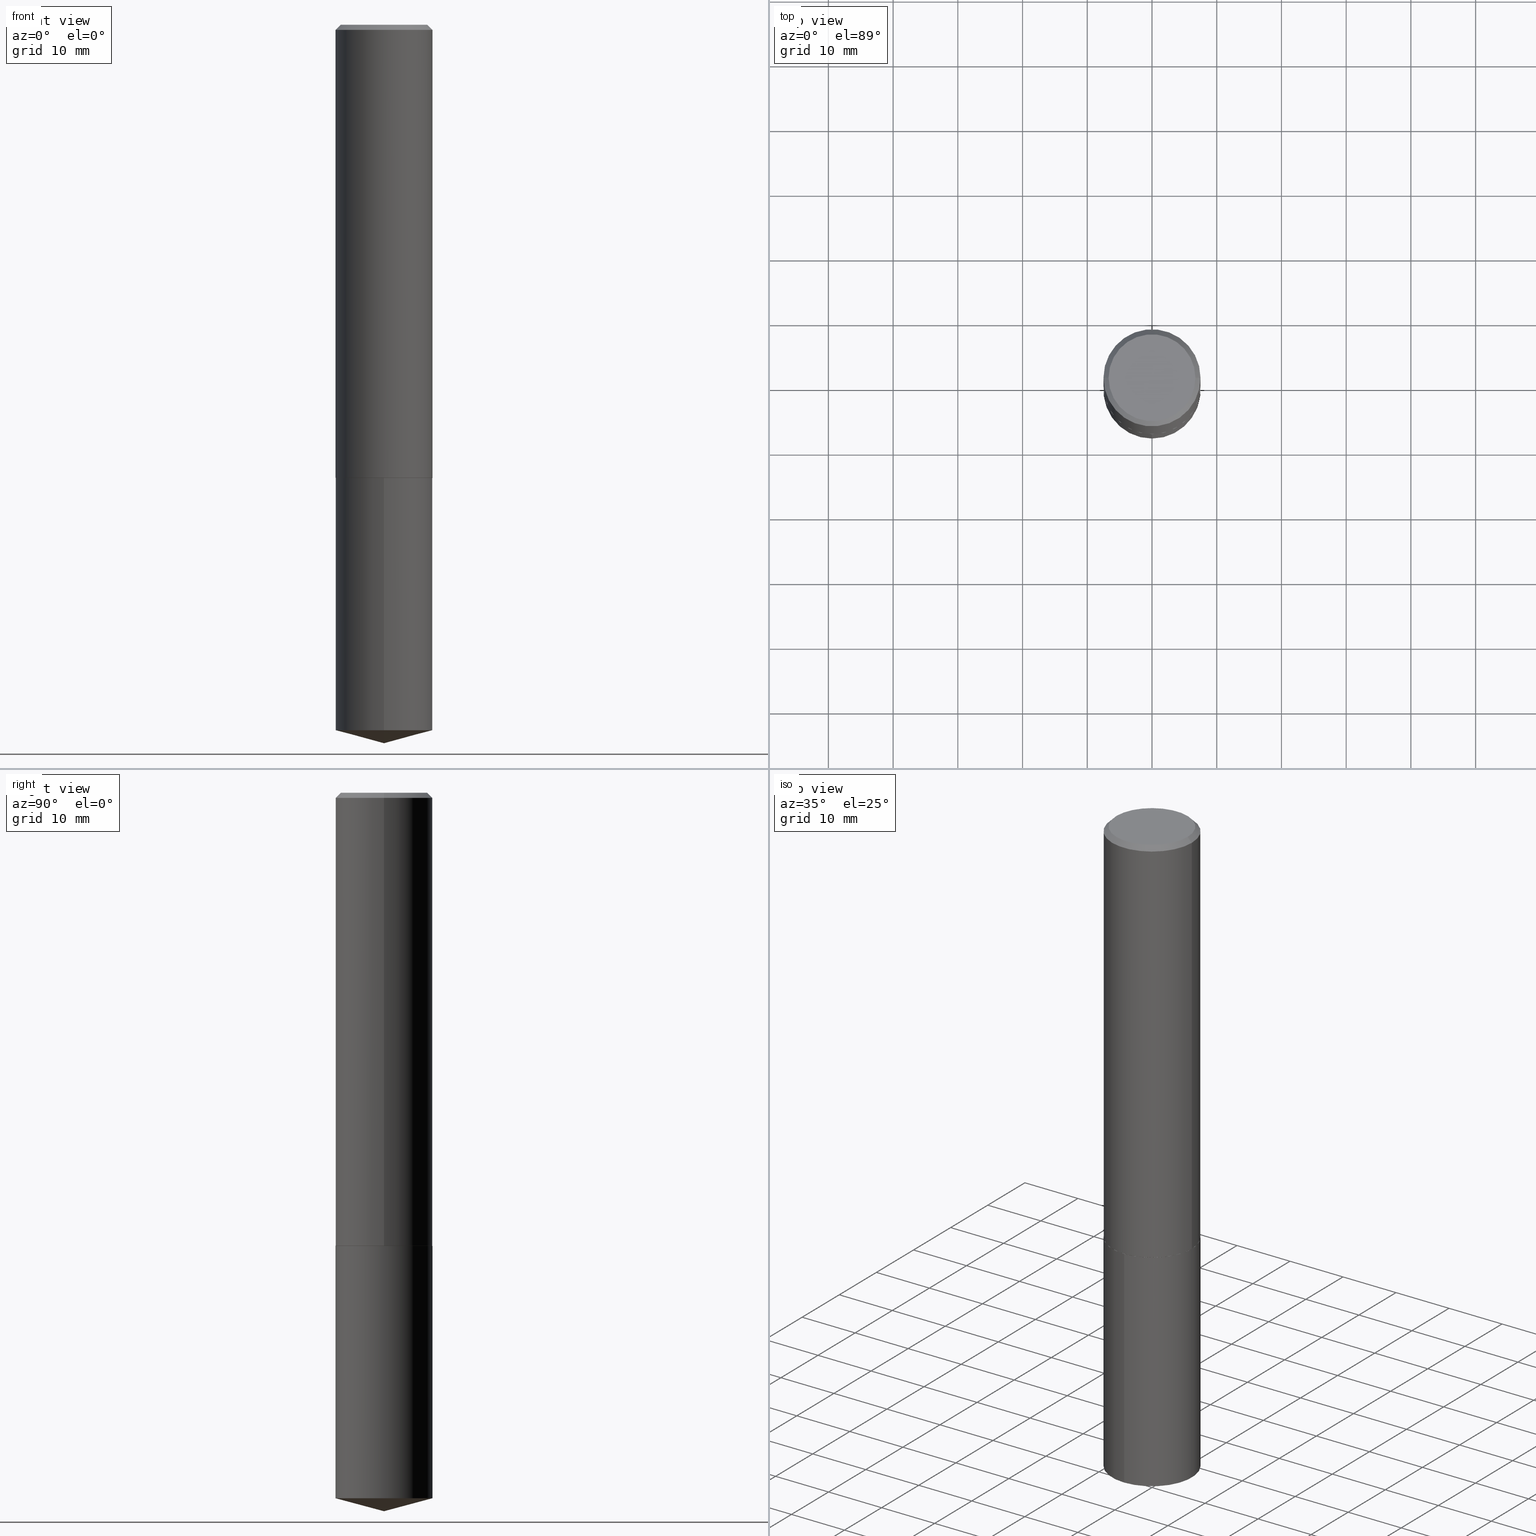
[diagram: canonical four-view strip — front | top / right | iso, engineering-drawing reading convention]
A machine part, canonical four-view strip (front | top / right | iso — engineering-drawing reading convention). The complete STEP part file that produces these views, byte-faithful:
ISO-10303-21;
HEADER;
FILE_DESCRIPTION (( 'STEP AP203' ),
    '1' );
FILE_NAME ('69053.STEP',
    '2024-04-23T14:42:55',
    ( '' ),
    ( '' ),
    'SwSTEP 2.0',
    'SolidWorks 2023',
    '' );
FILE_SCHEMA (( 'CONFIG_CONTROL_DESIGN' ));
ENDSEC;

DATA;
#1 = CARTESIAN_POINT ( 'NONE',  ( 0.000000000000000000, 0.000000000000000000, 0.000000000000000000 ) ) ;
#2 = ORIENTED_EDGE ( 'NONE', *, *, #195, .F. ) ;
#3 = APPROVAL ( #225, 'UNSPECIFIED' ) ;
#4 = ORIENTED_EDGE ( 'NONE', *, *, #309, .F. ) ;
#5 = DIRECTION ( 'NONE',  ( 1.000000000000000000, 0.000000000000000000, 0.000000000000000000 ) ) ;
#6 = EDGE_CURVE ( 'NONE', #332, #176, #150, .T. ) ;
#7 = EDGE_LOOP ( 'NONE', ( #247, #364, #180, #209 ) ) ;
#8 = ORIENTED_EDGE ( 'NONE', *, *, #278, .F. ) ;
#9 = DIRECTION ( 'NONE',  ( -2.445468806185136597E-29, 3.491481338843145583E-15, 1.000000000000000000 ) ) ;
#10 = CONICAL_SURFACE ( 'NONE', #164, 0.2953000000000000069, 0.7853981633974447263 ) ;
#11 = CC_DESIGN_PERSON_AND_ORGANIZATION_ASSIGNMENT ( #12, #220, ( #163 ) ) ;
#12 = PERSON_AND_ORGANIZATION ( #255, #156 ) ;
#13 = ORIENTED_EDGE ( 'NONE', *, *, #6, .T. ) ;
#14 = CARTESIAN_POINT ( 'NONE',  ( 1.068708000311400123E-28, -1.525793468575168796E-14, -4.370099999999999874 ) ) ;
#15 = ORIENTED_EDGE ( 'NONE', *, *, #30, .T. ) ;
#16 = ADVANCED_FACE ( 'NONE', ( #124 ), #330, .T. ) ;
#17 = DIRECTION ( 'NONE',  ( -2.445353893289901257E-29, 3.491645900649558519E-15, 1.000000000000000000 ) ) ;
#18 = DIRECTION ( 'NONE',  ( -2.445468806185136597E-29, 3.491481338843145583E-15, 1.000000000000000000 ) ) ;
#19 = AXIS2_PLACEMENT_3D ( 'NONE', #280, #308, #190 ) ;
#20 = DIRECTION ( 'NONE',  ( -2.445468806185136597E-29, 3.491481338843145583E-15, 1.000000000000000000 ) ) ;
#21 = CARTESIAN_POINT ( 'NONE',  ( -2.949913012720698115E-47, 4.211693974208535336E-33, 1.206277097160147711E-18 ) ) ;
#22 = COORDINATED_UNIVERSAL_TIME_OFFSET ( 5, 0, .BEHIND. ) ;
#23 = EDGE_CURVE ( 'NONE', #147, #82, #388, .T. ) ;
#24 = DIRECTION ( 'NONE',  ( -2.445468806185136877E-29, 3.491481338843145188E-15, 1.000000000000000000 ) ) ;
#25 = CC_DESIGN_PERSON_AND_ORGANIZATION_ASSIGNMENT ( #169, #102, ( #373 ) ) ;
#26 = APPLICATION_PROTOCOL_DEFINITION ( 'international standard', 'config_control_design', 1994, #302 ) ;
#27 = ORIENTED_EDGE ( 'NONE', *, *, #309, .T. ) ;
#28 = CARTESIAN_POINT ( 'NONE',  ( 0.2640500000000000069, -1.973264173446177597E-15, 1.206277097173494598E-18 ) ) ;
#29 = EDGE_LOOP ( 'NONE', ( #344, #276 ) ) ;
#30 = EDGE_CURVE ( 'NONE', #370, #80, #129, .T. ) ;
#31 = AXIS2_PLACEMENT_3D ( 'NONE', #61, #312, #39 ) ;
#32 = ORIENTED_EDGE ( 'NONE', *, *, #258, .F. ) ;
#33 = VECTOR ( 'NONE', #253, 39.37007874015748143 ) ;
#34 = CALENDAR_DATE ( 2024, 23, 4 ) ;
#35 = ORIENTED_EDGE ( 'NONE', *, *, #207, .F. ) ;
#36 = CARTESIAN_POINT ( 'NONE',  ( -2.062068878720649644E-15, -0.2953000000000150504, -4.290974603475088855 ) ) ;
#37 = DATE_TIME_ROLE ( 'creation_date' ) ;
#38 = CARTESIAN_POINT ( 'NONE',  ( 1.068644104906619709E-28, -1.525884175042863679E-14, -4.370099999999999874 ) ) ;
#39 = DIRECTION ( 'NONE',  ( 1.000000000000000000, -6.982962677686268288E-15, 0.000000000000000000 ) ) ;
#40 = COORDINATED_UNIVERSAL_TIME_OFFSET ( 5, 0, .BEHIND. ) ;
#41 = CARTESIAN_POINT ( 'NONE',  ( 6.739712029846235896E-29, -9.622522569851707902E-15, -2.755999999999999783 ) ) ;
#42 = DIRECTION ( 'NONE',  ( 6.863315791527694259E-15, 0.9659258262890694224, 0.2588190451025160765 ) ) ;
#43 = APPROVAL_PERSON_ORGANIZATION ( #106, #3, #294 ) ;
#44 = FACE_OUTER_BOUND ( 'NONE', #179, .T. ) ;
#45 = LINE ( 'NONE', #120, #33 ) ;
#46 = CARTESIAN_POINT ( 'NONE',  ( 0.2953000000000000069, -2.171177670559603663E-15, -0.03125000000000022898 ) ) ;
#47 = PLANE ( 'NONE',  #245 ) ;
#48 = AXIS2_PLACEMENT_3D ( 'NONE', #41, #17, #122 ) ;
#49 = FACE_OUTER_BOUND ( 'NONE', #29, .T. ) ;
#50 = ADVANCED_FACE ( 'NONE', ( #92 ), #10, .T. ) ;
#51 = DIRECTION ( 'NONE',  ( -2.438088387897960049E-29, 3.491481338843145188E-15, 1.000000000000000000 ) ) ;
#52 = SHAPE_DEFINITION_REPRESENTATION ( #203, #320 ) ;
#53 = VECTOR ( 'NONE', #142, 39.37007874015748143 ) ;
#54 = CC_DESIGN_APPROVAL ( #298, ( #232 ) ) ;
#55 = DIRECTION ( 'NONE',  ( -2.445468806185136597E-29, 3.491481338843145583E-15, 1.000000000000000000 ) ) ;
#56 = CONICAL_SURFACE ( 'NONE', #224, 0.2953000000000000069, 0.7853981633974447263 ) ;
#57 = PRODUCT_RELATED_PRODUCT_CATEGORY ( 'detail', '', ( #241 ) ) ;
#58 = ORIENTED_EDGE ( 'NONE', *, *, #292, .F. ) ;
#59 = VECTOR ( 'NONE', #127, 39.37007874015748143 ) ;
#60 = CARTESIAN_POINT ( 'NONE',  ( -0.2640500000000000069, 1.898405690962482095E-15, 1.206277097147062172E-18 ) ) ;
#61 = CARTESIAN_POINT ( 'NONE',  ( 6.738489295443143094E-29, -9.620776829182285610E-15, -2.755499999999999616 ) ) ;
#62 = DIRECTION ( 'NONE',  ( 1.000000000000000000, -6.982962677686268288E-15, 0.000000000000000000 ) ) ;
#63 = PERSON_AND_ORGANIZATION ( #255, #156 ) ;
#64 = CARTESIAN_POINT ( 'NONE',  ( 6.739712029846235896E-29, -9.622522569851707902E-15, -2.755999999999999783 ) ) ;
#65 = DIRECTION ( 'NONE',  ( 0.7071067811865450192, -7.319954787623246579E-15, -0.7071067811865500152 ) ) ;
#66 = CLOSED_SHELL ( 'NONE', ( #336, #286, #243, #367, #16, #186, #50, #112 ) ) ;
#67 = CARTESIAN_POINT ( 'NONE',  ( 6.738489295443143094E-29, -9.620776829182285610E-15, -2.755499999999999616 ) ) ;
#68 = DIRECTION ( 'NONE',  ( 1.000000000000000000, -6.982962677686268288E-15, 0.000000000000000000 ) ) ;
#69 = DATE_AND_TIME ( #234, #171 ) ;
#70 = ORIENTED_EDGE ( 'NONE', *, *, #207, .T. ) ;
#71 = COORDINATED_UNIVERSAL_TIME_OFFSET ( 5, 0, .BEHIND. ) ;
#72 = LINE ( 'NONE', #107, #119 ) ;
#73 = AXIS2_PLACEMENT_3D ( 'NONE', #359, #18, #357 ) ;
#74 = DIRECTION ( 'NONE',  ( -2.445468806185136597E-29, 3.491481338843145583E-15, 1.000000000000000000 ) ) ;
#75 = FACE_OUTER_BOUND ( 'NONE', #141, .T. ) ;
#76 = DIRECTION ( 'NONE',  ( -2.445468806185136597E-29, 3.491481338843145583E-15, 1.000000000000000000 ) ) ;
#77 = AXIS2_PLACEMENT_3D ( 'NONE', #383, #20, #197 ) ;
#78 = AXIS2_PLACEMENT_3D ( 'NONE', #221, #160, #189 ) ;
#79 = CARTESIAN_POINT ( 'NONE',  ( -1.474956506360349058E-47, 2.105846987104267668E-33, 6.031385485800738553E-19 ) ) ;
#80 = VERTEX_POINT ( 'NONE', #279 ) ;
#81 = EDGE_LOOP ( 'NONE', ( #32, #70, #283, #58 ) ) ;
#82 = VERTEX_POINT ( 'NONE', #60 ) ;
#83 = CALENDAR_DATE ( 2024, 23, 4 ) ;
#84 = EDGE_LOOP ( 'NONE', ( #314, #13, #390 ) ) ;
#85 = DIRECTION ( 'NONE',  ( -2.445468806185136597E-29, 3.491481338843145583E-15, 1.000000000000000000 ) ) ;
#86 = ADVANCED_FACE ( 'NONE', ( #184 ), #154, .T. ) ;
#87 = CONICAL_SURFACE ( 'NONE', #78, 146.9311341562558084, 1.308996938995748538 ) ;
#88 = DATE_AND_TIME ( #34, #281 ) ;
#89 = EDGE_LOOP ( 'NONE', ( #365, #111, #193, #35 ) ) ;
#90 = EDGE_CURVE ( 'NONE', #176, #80, #45, .T. ) ;
#91 = UNCERTAINTY_MEASURE_WITH_UNIT (LENGTH_MEASURE( 1.000000000000000082E-05 ), #352, 'distance_accuracy_value', 'NONE');
#92 = FACE_OUTER_BOUND ( 'NONE', #304, .T. ) ;
#93 = DIRECTION ( 'NONE',  ( 6.982962677686265922E-15, 1.000000000000000000, -3.491645900649558124E-15 ) ) ;
#94 = ADVANCED_FACE ( 'NONE', ( #218 ), #87, .T. ) ;
#95 = PERSON_AND_ORGANIZATION_ROLE ( 'design_owner' ) ;
#96 = DIRECTION ( 'NONE',  ( 1.000000000000000000, -6.982962677686266711E-15, 4.876208427331695751E-29 ) ) ;
#97 = CARTESIAN_POINT ( 'NONE',  ( -0.2953000000000003955, -7.522544130482707345E-15, -2.755499999999999616 ) ) ;
#98 = EDGE_CURVE ( 'NONE', #307, #285, #259, .T. ) ;
#99 = AXIS2_PLACEMENT_3D ( 'NONE', #79, #175, #226 ) ;
#100 = ORIENTED_EDGE ( 'NONE', *, *, #239, .T. ) ;
#101 = CIRCLE ( 'NONE', #31, 0.2953000000000003955 ) ;
#102 = PERSON_AND_ORGANIZATION_ROLE ( 'classification_officer' ) ;
#103 = PLANE ( 'NONE',  #99 ) ;
#104 = DIRECTION ( 'NONE',  ( 1.000000000000000000, -6.982962677686268288E-15, 4.876176775795936353E-29 ) ) ;
#105 = DIRECTION ( 'NONE',  ( 1.000000000000000000, -6.982962677686266711E-15, 4.876208427331695751E-29 ) ) ;
#106 = PERSON_AND_ORGANIZATION ( #255, #156 ) ;
#107 = CARTESIAN_POINT ( 'NONE',  ( -0.2953000000000000069, 1.952960086881905857E-15, -0.03125000000000022898 ) ) ;
#108 = DIRECTION ( 'NONE',  ( -0.7071067811865450192, 2.468850131082230634E-15, -0.7071067811865500152 ) ) ;
#109 = CYLINDRICAL_SURFACE ( 'NONE', #177, 0.2953000000000000069 ) ;
#110 = AXIS2_PLACEMENT_3D ( 'NONE', #21, #170, #105 ) ;
#111 = ORIENTED_EDGE ( 'NONE', *, *, #266, .T. ) ;
#112 = ADVANCED_FACE ( 'NONE', ( #261 ), #103, .F. ) ;
#113 = VERTEX_POINT ( 'NONE', #274 ) ;
#114 = LOCAL_TIME ( 10, 42, 55.00000000000000000, #117 ) ;
#115 = ORIENTED_EDGE ( 'NONE', *, *, #239, .F. ) ;
#116 = ORIENTED_EDGE ( 'NONE', *, *, #165, .T. ) ;
#117 = COORDINATED_UNIVERSAL_TIME_OFFSET ( 5, 0, .BEHIND. ) ;
#118 = EDGE_LOOP ( 'NONE', ( #377, #315, #4, #188 ) ) ;
#119 = VECTOR ( 'NONE', #108, 39.37007874015748143 ) ;
#120 = CARTESIAN_POINT ( 'NONE',  ( -2.062068878720687115E-15, -0.2953000000000096659, -2.755999999999998895 ) ) ;
#121 = CARTESIAN_POINT ( 'NONE',  ( 0.000000000000000000, 0.000000000000000000, 0.000000000000000000 ) ) ;
#122 = DIRECTION ( 'NONE',  ( -6.982962677686266711E-15, -1.000000000000000000, 3.700437512582815297E-15 ) ) ;
#123 = DIRECTION ( 'NONE',  ( -2.445353893289901257E-29, 3.491645900649558519E-15, 1.000000000000000000 ) ) ;
#124 = FACE_OUTER_BOUND ( 'NONE', #89, .T. ) ;
#125 = CARTESIAN_POINT ( 'NONE',  ( 6.738489295443143094E-29, -9.620776829182285610E-15, -2.755499999999999616 ) ) ;
#126 = DIMENSIONAL_EXPONENTS ( 1.000000000000000000, 0.000000000000000000, 0.000000000000000000, 0.000000000000000000, 0.000000000000000000, 0.000000000000000000, 0.000000000000000000 ) ;
#127 = DIRECTION ( 'NONE',  ( 0.7071067811868372299, -2.468850131085291414E-15, 0.7071067811862578045 ) ) ;
#128 = CARTESIAN_POINT ( 'NONE',  ( 7.642090019328607041E-31, -1.091087918388490883E-16, -0.03125000000000022898 ) ) ;
#129 = CIRCLE ( 'NONE', #338, 0.2953000000000000069 ) ;
#130 = DIRECTION ( 'NONE',  ( 1.000000000000000000, -6.982962677686267499E-15, 0.000000000000000000 ) ) ;
#131 = CARTESIAN_POINT ( 'NONE',  ( 0.2953000000000003955, -1.168284570790304451E-14, -2.755499999999999616 ) ) ;
#132 = LINE ( 'NONE', #368, #53 ) ;
#133 = CARTESIAN_POINT ( 'NONE',  ( 0.000000000000000000, 0.000000000000000000, 0.000000000000000000 ) ) ;
#134 = PERSON_AND_ORGANIZATION ( #255, #156 ) ;
#135 = LENGTH_MEASURE_WITH_UNIT ( LENGTH_MEASURE( 0.02539999999999999897 ), #296 );
#136 = CC_DESIGN_PERSON_AND_ORGANIZATION_ASSIGNMENT ( #208, #149, ( #232 ) ) ;
#137 = EDGE_LOOP ( 'NONE', ( #349, #15 ) ) ;
#138 = VECTOR ( 'NONE', #210, 39.37007874015748143 ) ;
#139 = AXIS2_PLACEMENT_3D ( 'NONE', #262, #354, #199 ) ;
#140 = EDGE_CURVE ( 'NONE', #333, #370, #132, .T. ) ;
#141 = EDGE_LOOP ( 'NONE', ( #334, #100, #27, #8 ) ) ;
#142 = DIRECTION ( 'NONE',  ( -2.445353893289901257E-29, 3.491645900649558124E-15, 1.000000000000000000 ) ) ;
#143 = EDGE_LOOP ( 'NONE', ( #351, #191, #2 ) ) ;
#144 = AXIS2_PLACEMENT_3D ( 'NONE', #161, #371, #284 ) ;
#145 = MECHANICAL_CONTEXT ( 'NONE', #302, 'mechanical' ) ;
#146 = VECTOR ( 'NONE', #350, 39.37007874015748143 ) ;
#147 = VERTEX_POINT ( 'NONE', #28 ) ;
#148 = EDGE_CURVE ( 'NONE', #333, #176, #214, .T. ) ;
#149 = PERSON_AND_ORGANIZATION_ROLE ( 'creator' ) ;
#150 = LINE ( 'NONE', #38, #297 ) ;
#151 = MANIFOLD_SOLID_BREP ( 'Body-Move/Copy2[2]', #66 ) ;
#152 = DATE_AND_TIME ( #213, #270 ) ;
#153 = EDGE_CURVE ( 'NONE', #332, #333, #378, .T. ) ;
#154 = CYLINDRICAL_SURFACE ( 'NONE', #48, 0.2953000000000000069 ) ;
#155 = CARTESIAN_POINT ( 'NONE',  ( 6.739712029846235896E-29, -9.622522569851707902E-15, -2.755999999999999783 ) ) ;
#156 = ORGANIZATION ( 'UNSPECIFIED', 'UNSPECIFIED', '' ) ;
#157 = CARTESIAN_POINT ( 'NONE',  ( 7.642090019328607041E-31, -1.091087918388490883E-16, -0.03125000000000022898 ) ) ;
#158 = ORIENTED_EDGE ( 'NONE', *, *, #303, .T. ) ;
#159 = PLANE ( 'NONE',  #231 ) ;
#160 = DIRECTION ( 'NONE',  ( -2.445353893289901257E-29, 3.491645900649558519E-15, 1.000000000000000000 ) ) ;
#161 = CARTESIAN_POINT ( 'NONE',  ( 6.739712029846235896E-29, -9.622522569851707902E-15, -2.755999999999999783 ) ) ;
#162 = CARTESIAN_POINT ( 'NONE',  ( 0.2948000000000003396, -1.168109996723362222E-14, -2.755999999999999339 ) ) ;
#163 = PRODUCT_DEFINITION_FORMATION_WITH_SPECIFIED_SOURCE ( 'ANY', '', #241, .NOT_KNOWN. ) ;
#164 = AXIS2_PLACEMENT_3D ( 'NONE', #157, #227, #341 ) ;
#165 = EDGE_CURVE ( 'NONE', #389, #380, #316, .T. ) ;
#166 = CARTESIAN_POINT ( 'NONE',  ( 6.739712029846235896E-29, -9.622522569851707902E-15, -2.755999999999999783 ) ) ;
#167 = CALENDAR_DATE ( 2024, 23, 4 ) ;
#168 =( NAMED_UNIT ( * ) PLANE_ANGLE_UNIT ( ) SI_UNIT ( $, .RADIAN. ) );
#169 = PERSON_AND_ORGANIZATION ( #255, #156 ) ;
#170 = DIRECTION ( 'NONE',  ( -2.445468806185136597E-29, 3.491481338843145583E-15, 1.000000000000000000 ) ) ;
#171 = LOCAL_TIME ( 10, 42, 55.00000000000000000, #71 ) ;
#172 = EDGE_CURVE ( 'NONE', #285, #380, #289, .T. ) ;
#173 = CLOSED_SHELL ( 'NONE', ( #86, #360, #94, #331, #246 ) ) ;
#174 = FACE_OUTER_BOUND ( 'NONE', #118, .T. ) ;
#175 = DIRECTION ( 'NONE',  ( 2.438088387897960049E-29, -3.491481338843145188E-15, -1.000000000000000000 ) ) ;
#176 = VERTEX_POINT ( 'NONE', #36 ) ;
#177 = AXIS2_PLACEMENT_3D ( 'NONE', #166, #361, #264 ) ;
#178 = EDGE_CURVE ( 'NONE', #80, #370, #327, .T. ) ;
#179 = EDGE_LOOP ( 'NONE', ( #158, #116, #346, #244 ) ) ;
#180 = ORIENTED_EDGE ( 'NONE', *, *, #90, .T. ) ;
#181 = AXIS2_PLACEMENT_3D ( 'NONE', #125, #85, #192 ) ;
#182 = DESIGN_CONTEXT ( 'detailed design', #240, 'design' ) ;
#183 = PERSON_AND_ORGANIZATION ( #255, #156 ) ;
#184 = FACE_OUTER_BOUND ( 'NONE', #382, .T. ) ;
#185 = LINE ( 'NONE', #319, #322 ) ;
#186 = ADVANCED_FACE ( 'NONE', ( #216 ), #288, .T. ) ;
#187 = DIRECTION ( 'NONE',  ( 0.000000000000000000, 0.000000000000000000, 1.000000000000000000 ) ) ;
#188 = ORIENTED_EDGE ( 'NONE', *, *, #374, .F. ) ;
#189 = DIRECTION ( 'NONE',  ( -6.982962677686266711E-15, -1.000000000000000000, 3.510303681827621500E-15 ) ) ;
#190 = DIRECTION ( 'NONE',  ( -6.982962677686266711E-15, -1.000000000000000000, 3.700437512582815297E-15 ) ) ;
#191 = ORIENTED_EDGE ( 'NONE', *, *, #153, .T. ) ;
#192 = DIRECTION ( 'NONE',  ( 1.000000000000000000, -6.982962677686268288E-15, 0.000000000000000000 ) ) ;
#193 = ORIENTED_EDGE ( 'NONE', *, *, #98, .T. ) ;
#194 = DIRECTION ( 'NONE',  ( 2.445468806185136597E-29, -3.491481338843145583E-15, -1.000000000000000000 ) ) ;
#195 = EDGE_CURVE ( 'NONE', #176, #333, #268, .T. ) ;
#196 = AXIS2_PLACEMENT_3D ( 'NONE', #222, #123, #347 ) ;
#197 = DIRECTION ( 'NONE',  ( 1.000000000000000000, -6.982962677686271444E-15, 0.000000000000000000 ) ) ;
#198 = CC_DESIGN_SECURITY_CLASSIFICATION ( #373, ( #163 ) ) ;
#199 = DIRECTION ( 'NONE',  ( -6.982962677686266711E-15, -1.000000000000000000, 3.510303681827621500E-15 ) ) ;
#200 = LINE ( 'NONE', #290, #236 ) ;
#201 = FACE_OUTER_BOUND ( 'NONE', #143, .T. ) ;
#202 = AXIS2_PLACEMENT_3D ( 'NONE', #337, #55, #329 ) ;
#203 = PRODUCT_DEFINITION_SHAPE ( 'NONE', 'NONE',  #232 ) ;
#204 = ORIENTED_EDGE ( 'NONE', *, *, #358, .T. ) ;
#205 = CC_DESIGN_PERSON_AND_ORGANIZATION_ASSIGNMENT ( #134, #229, ( #163 ) ) ;
#206 = ORIENTED_EDGE ( 'NONE', *, *, #292, .T. ) ;
#207 = EDGE_CURVE ( 'NONE', #380, #285, #101, .T. ) ;
#208 = PERSON_AND_ORGANIZATION ( #255, #156 ) ;
#209 = ORIENTED_EDGE ( 'NONE', *, *, #30, .F. ) ;
#210 = DIRECTION ( 'NONE',  ( -2.445468806185136877E-29, 3.491481338843145188E-15, 1.000000000000000000 ) ) ;
#211 = AXIS2_PLACEMENT_3D ( 'NONE', #318, #277, #96 ) ;
#212 =( GEOMETRIC_REPRESENTATION_CONTEXT ( 3 ) GLOBAL_UNCERTAINTY_ASSIGNED_CONTEXT ( ( #91 ) ) GLOBAL_UNIT_ASSIGNED_CONTEXT ( ( #352, #168, #385 ) ) REPRESENTATION_CONTEXT ( 'NONE', 'WORKASPACE' ) );
#213 = CALENDAR_DATE ( 2024, 23, 4 ) ;
#214 = CIRCLE ( 'NONE', #19, 0.2953000000000000069 ) ;
#215 = DIRECTION ( 'NONE',  ( -6.982962677686266711E-15, -1.000000000000000000, 3.700437512582815297E-15 ) ) ;
#216 = FACE_OUTER_BOUND ( 'NONE', #81, .T. ) ;
#217 = APPLICATION_PROTOCOL_DEFINITION ( 'international standard', 'config_control_design', 1994, #240 ) ;
#218 = FACE_OUTER_BOUND ( 'NONE', #84, .T. ) ;
#219 = LINE ( 'NONE', #260, #138 ) ;
#220 = PERSON_AND_ORGANIZATION_ROLE ( 'creator' ) ;
#221 = CARTESIAN_POINT ( 'NONE',  ( -8.558701757736859767E-28, 1.222079858232310516E-13, 34.99997874015748067 ) ) ;
#222 = CARTESIAN_POINT ( 'NONE',  ( 1.049326815255516956E-28, -1.498211035167668908E-14, -4.290974603475089744 ) ) ;
#223 = ORIENTED_EDGE ( 'NONE', *, *, #278, .T. ) ;
#224 = AXIS2_PLACEMENT_3D ( 'NONE', #128, #194, #265 ) ;
#225 = APPROVAL_STATUS ( 'not_yet_approved' ) ;
#226 = DIRECTION ( 'NONE',  ( -1.000000000000000000, 6.982962677686265922E-15, -4.876176775795935793E-29 ) ) ;
#227 = DIRECTION ( 'NONE',  ( 2.445468806185136597E-29, -3.491481338843145583E-15, -1.000000000000000000 ) ) ;
#228 = DIRECTION ( 'NONE',  ( 1.000000000000000000, -6.982962677686265922E-15, 4.876176775795935793E-29 ) ) ;
#229 = PERSON_AND_ORGANIZATION_ROLE ( 'design_supplier' ) ;
#230 = CARTESIAN_POINT ( 'NONE',  ( 2.098232698699681211E-15, 0.2952999999999904035, -2.756000000000000671 ) ) ;
#231 = AXIS2_PLACEMENT_3D ( 'NONE', #155, #376, #93 ) ;
#232 = PRODUCT_DEFINITION ( 'UNKNOWN', '', #163, #182 ) ;
#233 = CARTESIAN_POINT ( 'NONE',  ( 1.068644104906619709E-28, -1.525884175042863363E-14, -4.370099999999999874 ) ) ;
#234 = CALENDAR_DATE ( 2024, 23, 4 ) ;
#235 = AXIS2_PLACEMENT_3D ( 'NONE', #325, #76, #130 ) ;
#236 = VECTOR ( 'NONE', #24, 39.37007874015748143 ) ;
#237 = VECTOR ( 'NONE', #42, 39.37007874015748143 ) ;
#238 = EDGE_LOOP ( 'NONE', ( #204, #366 ) ) ;
#239 = EDGE_CURVE ( 'NONE', #147, #249, #185, .T. ) ;
#240 = APPLICATION_CONTEXT ( 'configuration controlled 3d designs of mechanical parts and assemblies' ) ;
#241 = PRODUCT ( '69053', '69053', '', ( #145 ) ) ;
#242 = ORIENTED_EDGE ( 'NONE', *, *, #195, .T. ) ;
#243 = ADVANCED_FACE ( 'NONE', ( #44 ), #372, .T. ) ;
#244 = ORIENTED_EDGE ( 'NONE', *, *, #98, .F. ) ;
#245 = AXIS2_PLACEMENT_3D ( 'NONE', #267, #51, #228 ) ;
#246 = ADVANCED_FACE ( 'NONE', ( #257 ), #159, .F. ) ;
#247 = ORIENTED_EDGE ( 'NONE', *, *, #140, .F. ) ;
#248 = APPROVAL_STATUS ( 'not_yet_approved' ) ;
#249 = VERTEX_POINT ( 'NONE', #46 ) ;
#250 = CARTESIAN_POINT ( 'NONE',  ( 6.738489295443143094E-29, -9.620776829182285610E-15, -2.755499999999999616 ) ) ;
#251 = CIRCLE ( 'NONE', #73, 0.2953000000000000069 ) ;
#252 = LOCAL_TIME ( 10, 42, 55.00000000000000000, #22 ) ;
#253 = DIRECTION ( 'NONE',  ( -2.445353893289901257E-29, 3.491645900649558124E-15, 1.000000000000000000 ) ) ;
#254 = DIRECTION ( 'NONE',  ( -2.445468806185136597E-29, 3.491481338843145583E-15, 1.000000000000000000 ) ) ;
#255 = PERSON ( 'UNSPECIFIED', 'UNSPECIFIED', 'UNSPECIFIED', ('UNSPECIFIED'), ('UNSPECIFIED'), ('UNSPECIFIED') ) ;
#256 = DIRECTION ( 'NONE',  ( -2.445353893289901257E-29, 3.491645900649558519E-15, 1.000000000000000000 ) ) ;
#257 = FACE_OUTER_BOUND ( 'NONE', #137, .T. ) ;
#258 = EDGE_CURVE ( 'NONE', #380, #113, #219, .T. ) ;
#259 = LINE ( 'NONE', #287, #59 ) ;
#260 = CARTESIAN_POINT ( 'NONE',  ( -0.2953000000000001735, 2.098232698699577081E-15, -1.452561532152274683E-29 ) ) ;
#261 = FACE_OUTER_BOUND ( 'NONE', #238, .T. ) ;
#262 = CARTESIAN_POINT ( 'NONE',  ( -8.558701757736859767E-28, 1.222079858232310516E-13, 34.99997874015748067 ) ) ;
#263 = DATE_AND_TIME ( #167, #252 ) ;
#264 = DIRECTION ( 'NONE',  ( -6.982962677686266711E-15, -1.000000000000000000, 3.700437512582815297E-15 ) ) ;
#265 = DIRECTION ( 'NONE',  ( -1.000000000000000000, 6.982962677686267499E-15, 0.000000000000000000 ) ) ;
#266 = EDGE_CURVE ( 'NONE', #389, #307, #355, .T. ) ;
#267 = CARTESIAN_POINT ( 'NONE',  ( 1.030650564944438453E-28, -4.514671097301707835E-15, -2.755999999999999783 ) ) ;
#268 = CIRCLE ( 'NONE', #196, 0.2953000000000000069 ) ;
#269 = ORIENTED_EDGE ( 'NONE', *, *, #358, .F. ) ;
#270 = LOCAL_TIME ( 10, 42, 55.00000000000000000, #40 ) ;
#271 = ORIENTED_EDGE ( 'NONE', *, *, #178, .F. ) ;
#272 = AXIS2_PLACEMENT_3D ( 'NONE', #67, #375, #62 ) ;
#273 = CIRCLE ( 'NONE', #110, 0.2640500000000000069 ) ;
#274 = CARTESIAN_POINT ( 'NONE',  ( -0.2953000000000000069, -2.766710111810989090E-15, -0.03125000000000022898 ) ) ;
#275 = APPROVAL_STATUS ( 'not_yet_approved' ) ;
#276 = ORIENTED_EDGE ( 'NONE', *, *, #266, .F. ) ;
#277 = DIRECTION ( 'NONE',  ( -2.445468806185136597E-29, 3.491481338843145583E-15, 1.000000000000000000 ) ) ;
#278 = EDGE_CURVE ( 'NONE', #82, #113, #72, .T. ) ;
#279 = CARTESIAN_POINT ( 'NONE',  ( -2.062068878720687115E-15, -0.2953000000000096659, -2.755999999999998895 ) ) ;
#280 = CARTESIAN_POINT ( 'NONE',  ( 1.049326815255516956E-28, -1.498211035167668908E-14, -4.290974603475089744 ) ) ;
#281 = LOCAL_TIME ( 10, 42, 55.00000000000000000, #343 ) ;
#282 = APPROVAL_ROLE ( '' ) ;
#283 = ORIENTED_EDGE ( 'NONE', *, *, #374, .T. ) ;
#284 = DIRECTION ( 'NONE',  ( -6.982962677686266711E-15, -1.000000000000000000, 3.700437512582815297E-15 ) ) ;
#285 = VERTEX_POINT ( 'NONE', #131 ) ;
#286 = ADVANCED_FACE ( 'NONE', ( #174 ), #321, .T. ) ;
#287 = CARTESIAN_POINT ( 'NONE',  ( 0.2953000000000003955, -1.168284570790304451E-14, -2.755499999999999616 ) ) ;
#288 = CYLINDRICAL_SURFACE ( 'NONE', #381, 0.2953000000000001735 ) ;
#289 = CIRCLE ( 'NONE', #363, 0.2953000000000003955 ) ;
#290 = CARTESIAN_POINT ( 'NONE',  ( 0.2953000000000001735, -2.062068878720756141E-15, 1.439935001892540778E-29 ) ) ;
#291 = MANIFOLD_SOLID_BREP ( 'Body-Move/Copy2[1]', #173 ) ;
#292 = EDGE_CURVE ( 'NONE', #113, #249, #251, .T. ) ;
#293 = CARTESIAN_POINT ( 'NONE',  ( 2.098232698699680817E-15, 0.2952999999999850744, -4.290974603475090632 ) ) ;
#294 = APPROVAL_ROLE ( '' ) ;
#295 = CONICAL_SURFACE ( 'NONE', #139, 146.9311341562558084, 1.308996938995748538 ) ;
#296 =( LENGTH_UNIT ( ) NAMED_UNIT ( * ) SI_UNIT ( $, .METRE. ) );
#297 = VECTOR ( 'NONE', #311, 39.37007874015748854 ) ;
#298 = APPROVAL ( #275, 'UNSPECIFIED' ) ;
#299 = CIRCLE ( 'NONE', #77, 0.2948000000000003396 ) ;
#300 = ORIENTED_EDGE ( 'NONE', *, *, #90, .F. ) ;
#301 = APPROVAL_PERSON_ORGANIZATION ( #310, #298, #282 ) ;
#302 = APPLICATION_CONTEXT ( 'configuration controlled 3d designs of mechanical parts and assemblies' ) ;
#303 = EDGE_CURVE ( 'NONE', #307, #389, #299, .T. ) ;
#304 = EDGE_LOOP ( 'NONE', ( #115, #269, #223, #206 ) ) ;
#305 = AXIS2_PLACEMENT_3D ( 'NONE', #133, #74, #104 ) ;
#306 = APPROVAL_DATE_TIME ( #379, #298 ) ;
#307 = VERTEX_POINT ( 'NONE', #162 ) ;
#308 = DIRECTION ( 'NONE',  ( -2.445353893289901257E-29, 3.491645900649558519E-15, 1.000000000000000000 ) ) ;
#309 = EDGE_CURVE ( 'NONE', #249, #113, #362, .T. ) ;
#310 = PERSON_AND_ORGANIZATION ( #255, #156 ) ;
#311 = DIRECTION ( 'NONE',  ( -6.745023994389839133E-15, -0.9659258262890676461, 0.2588190451025227934 ) ) ;
#312 = DIRECTION ( 'NONE',  ( -2.445468806185136597E-29, 3.491481338843145583E-15, 1.000000000000000000 ) ) ;
#313 = APPROVAL_DATE_TIME ( #152, #324 ) ;
#314 = ORIENTED_EDGE ( 'NONE', *, *, #153, .F. ) ;
#315 = ORIENTED_EDGE ( 'NONE', *, *, #258, .T. ) ;
#316 = LINE ( 'NONE', #97, #146 ) ;
#317 = CC_DESIGN_DATE_AND_TIME_ASSIGNMENT ( #69, #353, ( #373 ) ) ;
#318 = CARTESIAN_POINT ( 'NONE',  ( -2.949913012720698115E-47, 4.211693974208535336E-33, 1.206277097160147711E-18 ) ) ;
#319 = CARTESIAN_POINT ( 'NONE',  ( 0.2953000000000000069, -2.135013850580782723E-15, -0.03125000000000022898 ) ) ;
#320 = ADVANCED_BREP_SHAPE_REPRESENTATION ( '69053', ( #291, #151, #339 ), #212 ) ;
#321 = CYLINDRICAL_SURFACE ( 'NONE', #305, 0.2953000000000001735 ) ;
#322 = VECTOR ( 'NONE', #65, 39.37007874015748143 ) ;
#323 = APPROVAL_PERSON_ORGANIZATION ( #63, #324, #369 ) ;
#324 = APPROVAL ( #248, 'UNSPECIFIED' ) ;
#325 = CARTESIAN_POINT ( 'NONE',  ( 7.642090019328607041E-31, -1.091087918388490883E-16, -0.03125000000000022898 ) ) ;
#326 = CARTESIAN_POINT ( 'NONE',  ( -0.2948000000000003396, -7.525193357656817757E-15, -2.755999999999999339 ) ) ;
#327 = CIRCLE ( 'NONE', #144, 0.2953000000000000069 ) ;
#328 = CC_DESIGN_APPROVAL ( #3, ( #373 ) ) ;
#329 = DIRECTION ( 'NONE',  ( 1.000000000000000000, -6.982962677686271444E-15, 0.000000000000000000 ) ) ;
#330 = CONICAL_SURFACE ( 'NONE', #272, 0.2953000000000003955, 0.7853981633978580623 ) ;
#331 = ADVANCED_FACE ( 'NONE', ( #387 ), #109, .T. ) ;
#332 = VERTEX_POINT ( 'NONE', #233 ) ;
#333 = VERTEX_POINT ( 'NONE', #293 ) ;
#334 = ORIENTED_EDGE ( 'NONE', *, *, #23, .F. ) ;
#335 = ORIENTED_EDGE ( 'NONE', *, *, #140, .T. ) ;
#336 = ADVANCED_FACE ( 'NONE', ( #75 ), #56, .T. ) ;
#337 = CARTESIAN_POINT ( 'NONE',  ( 6.739712029846234775E-29, -9.622522569851706324E-15, -2.755999999999999339 ) ) ;
#338 = AXIS2_PLACEMENT_3D ( 'NONE', #64, #256, #215 ) ;
#339 = AXIS2_PLACEMENT_3D ( 'NONE', #1, #187, #5 ) ;
#340 = CC_DESIGN_PERSON_AND_ORGANIZATION_ASSIGNMENT ( #183, #95, ( #241 ) ) ;
#341 = DIRECTION ( 'NONE',  ( -1.000000000000000000, 6.982962677686267499E-15, 0.000000000000000000 ) ) ;
#342 = DIRECTION ( 'NONE',  ( 1.000000000000000000, -6.982962677686268288E-15, 4.876176775795936353E-29 ) ) ;
#343 = COORDINATED_UNIVERSAL_TIME_OFFSET ( 5, 0, .BEHIND. ) ;
#344 = ORIENTED_EDGE ( 'NONE', *, *, #303, .F. ) ;
#345 = CC_DESIGN_DATE_AND_TIME_ASSIGNMENT ( #88, #37, ( #232 ) ) ;
#346 = ORIENTED_EDGE ( 'NONE', *, *, #172, .F. ) ;
#347 = DIRECTION ( 'NONE',  ( -6.982962677686266711E-15, -1.000000000000000000, 3.700437512582815297E-15 ) ) ;
#348 = CC_DESIGN_APPROVAL ( #324, ( #163 ) ) ;
#349 = ORIENTED_EDGE ( 'NONE', *, *, #178, .T. ) ;
#350 = DIRECTION ( 'NONE',  ( -0.7071067811868372299, 7.493145998871401767E-15, 0.7071067811862578045 ) ) ;
#351 = ORIENTED_EDGE ( 'NONE', *, *, #6, .F. ) ;
#352 =( CONVERSION_BASED_UNIT ( 'INCH', #135 ) LENGTH_UNIT ( ) NAMED_UNIT ( #126 ) );
#353 = DATE_TIME_ROLE ( 'classification_date' ) ;
#354 = DIRECTION ( 'NONE',  ( -2.445353893289901257E-29, 3.491645900649558519E-15, 1.000000000000000000 ) ) ;
#355 = CIRCLE ( 'NONE', #202, 0.2948000000000003396 ) ;
#356 = APPROVAL_DATE_TIME ( #263, #3 ) ;
#357 = DIRECTION ( 'NONE',  ( 1.000000000000000000, -6.982962677686267499E-15, 0.000000000000000000 ) ) ;
#358 = EDGE_CURVE ( 'NONE', #82, #147, #273, .T. ) ;
#359 = CARTESIAN_POINT ( 'NONE',  ( 7.642090019328607041E-31, -1.091087918388490883E-16, -0.03125000000000022898 ) ) ;
#360 = ADVANCED_FACE ( 'NONE', ( #201 ), #295, .T. ) ;
#361 = DIRECTION ( 'NONE',  ( -2.445353893289901257E-29, 3.491645900649558519E-15, 1.000000000000000000 ) ) ;
#362 = CIRCLE ( 'NONE', #235, 0.2953000000000000069 ) ;
#363 = AXIS2_PLACEMENT_3D ( 'NONE', #250, #9, #68 ) ;
#364 = ORIENTED_EDGE ( 'NONE', *, *, #148, .T. ) ;
#365 = ORIENTED_EDGE ( 'NONE', *, *, #165, .F. ) ;
#366 = ORIENTED_EDGE ( 'NONE', *, *, #23, .T. ) ;
#367 = ADVANCED_FACE ( 'NONE', ( #49 ), #47, .F. ) ;
#368 = CARTESIAN_POINT ( 'NONE',  ( 2.098232698699643346E-15, 0.2952999999999904035, -2.756000000000000671 ) ) ;
#369 = APPROVAL_ROLE ( '' ) ;
#370 = VERTEX_POINT ( 'NONE', #230 ) ;
#371 = DIRECTION ( 'NONE',  ( -2.445353893289901257E-29, 3.491645900649558519E-15, 1.000000000000000000 ) ) ;
#372 = CONICAL_SURFACE ( 'NONE', #181, 0.2953000000000003955, 0.7853981633978580623 ) ;
#373 = SECURITY_CLASSIFICATION ( '', '', #386 ) ;
#374 = EDGE_CURVE ( 'NONE', #285, #249, #200, .T. ) ;
#375 = DIRECTION ( 'NONE',  ( -2.445468806185136597E-29, 3.491481338843145583E-15, 1.000000000000000000 ) ) ;
#376 = DIRECTION ( 'NONE',  ( 2.445353893289901257E-29, -3.491645900649558124E-15, -1.000000000000000000 ) ) ;
#377 = ORIENTED_EDGE ( 'NONE', *, *, #172, .T. ) ;
#378 = LINE ( 'NONE', #14, #237 ) ;
#379 = DATE_AND_TIME ( #83, #114 ) ;
#380 = VERTEX_POINT ( 'NONE', #384 ) ;
#381 = AXIS2_PLACEMENT_3D ( 'NONE', #121, #254, #342 ) ;
#382 = EDGE_LOOP ( 'NONE', ( #242, #335, #271, #300 ) ) ;
#383 = CARTESIAN_POINT ( 'NONE',  ( 6.739712029846234775E-29, -9.622522569851706324E-15, -2.755999999999999339 ) ) ;
#384 = CARTESIAN_POINT ( 'NONE',  ( -0.2953000000000003955, -7.522544130482707345E-15, -2.755499999999999616 ) ) ;
#385 =( NAMED_UNIT ( * ) SI_UNIT ( $, .STERADIAN. ) SOLID_ANGLE_UNIT ( ) );
#386 = SECURITY_CLASSIFICATION_LEVEL ( 'unclassified' ) ;
#387 = FACE_OUTER_BOUND ( 'NONE', #7, .T. ) ;
#388 = CIRCLE ( 'NONE', #211, 0.2640500000000000069 ) ;
#389 = VERTEX_POINT ( 'NONE', #326 ) ;
#390 = ORIENTED_EDGE ( 'NONE', *, *, #148, .F. ) ;
ENDSEC;
END-ISO-10303-21;
